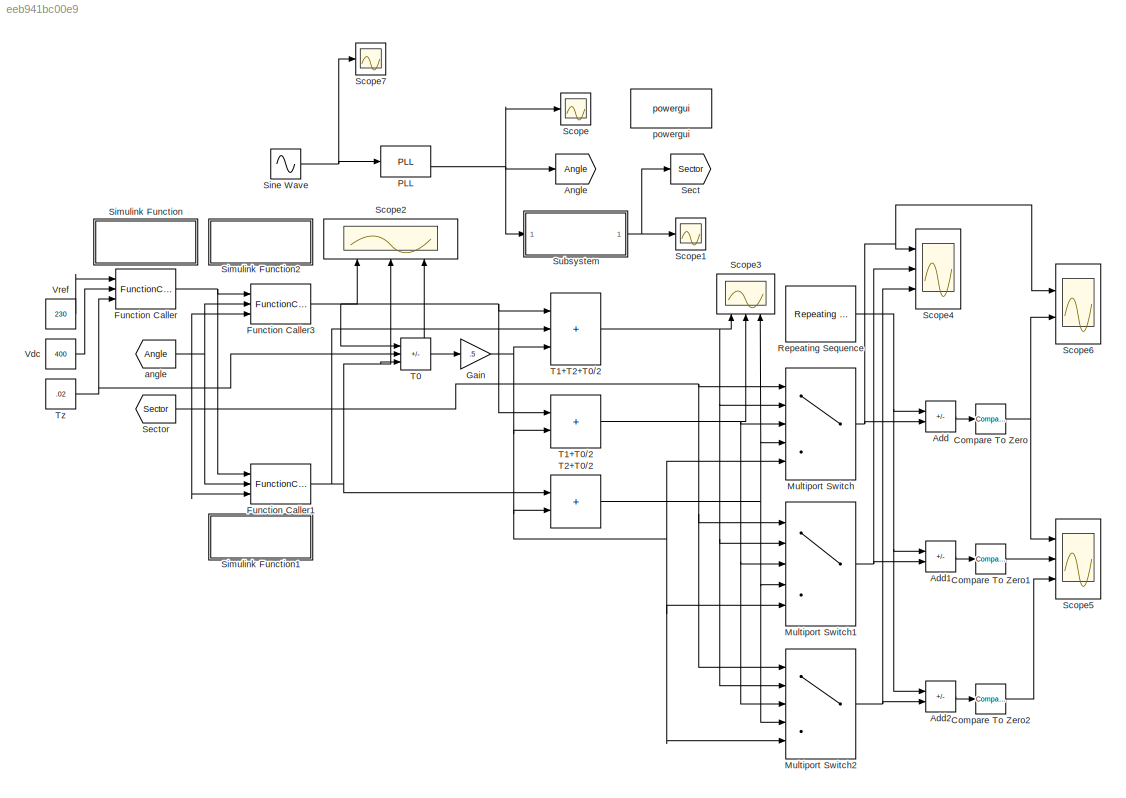
MODEL slx_eeb941bc00e9
KIND model
CONFIG AbsTol = auto
CONFIG EnableMultiTasking = off
CONFIG FixedStep = auto
CONFIG MaxStep = auto
CONFIG MinStep = auto
CONFIG RelTol = 1e-3
CONFIG SampleTimeConstraint = Unconstrained
CONFIG SolverName = VariableStepAuto
CONFIG StartTime = 0.0
CONFIG StopTime = 1
BLOCK [Sum] Add
  IconShape = rectangular
  Inputs = +-
  Ports = [2, 1]
BLOCK [Sum] Add1
  IconShape = rectangular
  Inputs = +-
  Ports = [2, 1]
BLOCK [Sum] Add2
  IconShape = rectangular
  Inputs = +-
  Ports = [2, 1]
BLOCK [Goto] Angle
  GotoTag = Angle
BLOCK [Reference] Compare To Zero  REF=simulink/Logic and Bit
Operations/Compare
To Zero
  Ports = [1, 1]
  SourceBlock = simulink/Logic and Bit\nOperations/Compare\nTo Zero
  SourceProductBaseCode = SL
  SourceType = Compare To Zero
BLOCK [Reference] Compare To Zero1  REF=simulink/Logic and Bit
Operations/Compare
To Zero
  Ports = [1, 1]
  SourceBlock = simulink/Logic and Bit\nOperations/Compare\nTo Zero
  SourceProductBaseCode = SL
  SourceType = Compare To Zero
BLOCK [Reference] Compare To Zero2  REF=simulink/Logic and Bit
Operations/Compare
To Zero
  Ports = [1, 1]
  SourceBlock = simulink/Logic and Bit\nOperations/Compare\nTo Zero
  SourceProductBaseCode = SL
  SourceType = Compare To Zero
BLOCK [FunctionCaller] Function Caller
  FunctionPrototype = y = f1(u1,u2,u3)
  InputArgumentSpecifications = <Enter example>
  OutputArgumentSpecifications = <Enter example>
  Ports = [3, 1]
BLOCK [FunctionCaller] Function Caller1
  FunctionPrototype = y = f2(u1,u2,u3)
  InputArgumentSpecifications = <Enter example>
  OutputArgumentSpecifications = <Enter example>
  Ports = [3, 1]
BLOCK [FunctionCaller] Function Caller3
  FunctionPrototype = y = f3(u1,u2,u3)
  InputArgumentSpecifications = <Enter example>
  OutputArgumentSpecifications = <Enter example>
  Ports = [3, 1]
BLOCK [Gain] Gain
  Gain = .5
BLOCK [MultiPortSwitch] Multiport Switch
  DataPortIndices = {[1,6],2,5,[3,4]}
  DataPortOrder = Specify indices
  InputSameDT = off
  Inputs = 4
  Ports = [5, 1]
  SaturateOnIntegerOverflow = off
BLOCK [MultiPortSwitch] Multiport Switch1
  DataPortIndices = {[2,3],4,1,[5,6]}
  DataPortOrder = Specify indices
  InputSameDT = off
  Inputs = 4
  Ports = [5, 1]
  SaturateOnIntegerOverflow = off
BLOCK [MultiPortSwitch] Multiport Switch2
  DataPortIndices = {[4,5],6,3,[1,2]}
  DataPortOrder = Specify indices
  InputSameDT = off
  Inputs = 4
  Ports = [5, 1]
  SaturateOnIntegerOverflow = off
BLOCK [Reference] PLL  REF=powerlib_meascontrol/PLL/PLL
  Ports = [1, 2]
  SourceBlock = powerlib_meascontrol/PLL/PLL
  SourceProductBaseCode = PS
  SourceType = PLL
BLOCK [Reference] Repeating Sequence  REF=simulink/Sources/Repeating
Sequence
  Ports = [0, 1]
  SourceBlock = simulink/Sources/Repeating\nSequence
  SourceProductBaseCode = SL
  SourceType = Repeating table
BLOCK [Scope] Scope
  Floating = off
  NumInputPorts = 1
  Ports = [1]
  ScopeSpecificationString = Simulink.scopes.TimeScopeBlockCfg('CurrentConfiguration', extmgr.ConfigurationSet(extmgr.Configuration('Core','General UI',true),extmgr.Configuration('Core','Source UI',true),extmgr.Configuration('Sources','WiredSimulink',true),extmgr.Configuration('Visuals','Time Domain',true,'SerializedDisplays',{struct('MinYLimReal','-0.67437','MaxYLimReal','6.38785','YLabelReal','','MinYLimMag','0.00000','MaxY...<+1373ch>
BLOCK [Scope] Scope1
  Floating = off
  NumInputPorts = 1
  Ports = [1]
  ScopeSpecificationString = Simulink.scopes.TimeScopeBlockCfg('CurrentConfiguration', extmgr.ConfigurationSet(extmgr.Configuration('Core','General UI',true),extmgr.Configuration('Core','Source UI',true),extmgr.Configuration('Sources','WiredSimulink',true,'DataLoggingVariableName','ScopeData1'),extmgr.Configuration('Visuals','Time Domain',true,'SerializedDisplays',{struct('MinYLimReal','0.375','MaxYLimReal','6.625','YLabelRea...<+1390ch>
BLOCK [Scope] Scope2
  Floating = off
  NameLocation = right
  NumInputPorts = 3
  Ports = [3]
  ScopeSpecificationString = Simulink.scopes.TimeScopeBlockCfg('CurrentConfiguration', extmgr.ConfigurationSet(extmgr.Configuration('Core','General UI',true),extmgr.Configuration('Core','Source UI',true),extmgr.Configuration('Sources','WiredSimulink',true,'DataLoggingVariableName','ScopeData2'),extmgr.Configuration('Visuals','Time Domain',true,'SerializedDisplays',{struct('MinYLimReal','-0.00216','MaxYLimReal','0.01745','YLab...<+2730ch>
BLOCK [Scope] Scope3
  Floating = off
  NameLocation = right
  NumInputPorts = 3
  Ports = [3]
  ScopeSpecificationString = Simulink.scopes.TimeScopeBlockCfg('CurrentConfiguration', extmgr.ConfigurationSet(extmgr.Configuration('Core','General UI',true),extmgr.Configuration('Core','Source UI',true),extmgr.Configuration('Sources','WiredSimulink',true,'DataLoggingVariableName','ScopeData1'),extmgr.Configuration('Visuals','Time Domain',true,'SerializedDisplays',{struct('MinYLimReal','0.01851','MaxYLimReal','0.01997','YLabe...<+2719ch>
BLOCK [Scope] Scope4
  Floating = off
  NumInputPorts = 3
  Ports = [3]
  ScopeSpecificationString = Simulink.scopes.TimeScopeBlockCfg('CurrentConfiguration', extmgr.ConfigurationSet(extmgr.Configuration('Core','General UI',true),extmgr.Configuration('Core','Source UI',true),extmgr.Configuration('Sources','WiredSimulink',true,'DataLoggingVariableName','ScopeData1'),extmgr.Configuration('Visuals','Time Domain',true,'SerializedDisplays',{struct('MinYLimReal','-0.00018','MaxYLimReal','0.02245','YLab...<+2746ch>
BLOCK [Scope] Scope5
  Floating = off
  NumInputPorts = 3
  Ports = [3]
  ScopeSpecificationString = Simulink.scopes.TimeScopeBlockCfg('CurrentConfiguration', extmgr.ConfigurationSet(extmgr.Configuration('Core','General UI',true),extmgr.Configuration('Core','Source UI',true),extmgr.Configuration('Sources','WiredSimulink',true,'DataLoggingVariableName','ScopeData2'),extmgr.Configuration('Visuals','Time Domain',true,'SerializedDisplays',{struct('MinYLimReal','-0.00219','MaxYLimReal','1.125','YLabel...<+2732ch>
BLOCK [Scope] Scope6
  Floating = off
  NumInputPorts = 2
  Ports = [2]
  ScopeSpecificationString = Simulink.scopes.TimeScopeBlockCfg('CurrentConfiguration', extmgr.ConfigurationSet(extmgr.Configuration('Core','General UI',true),extmgr.Configuration('Core','Source UI',true),extmgr.Configuration('Sources','WiredSimulink',true,'DataLoggingVariableName','ScopeData3'),extmgr.Configuration('Visuals','Time Domain',true,'SerializedDisplays',{struct('MinYLimReal','-0.00062','MaxYLimReal','0.02044','YLab...<+2023ch>
BLOCK [Scope] Scope7
  Floating = off
  NumInputPorts = 1
  Ports = [1]
  ScopeSpecificationString = Simulink.scopes.TimeScopeBlockCfg('CurrentConfiguration', extmgr.ConfigurationSet(extmgr.Configuration('Core','General UI',true),extmgr.Configuration('Core','Source UI',true),extmgr.Configuration('Sources','WiredSimulink',true,'DataLoggingVariableName','ScopeData4'),extmgr.Configuration('Visuals','Time Domain',true,'SerializedDisplays',{struct('MinYLimReal','-1.25','MaxYLimReal','1.25','YLabelReal...<+1399ch>
BLOCK [Goto] Sect
  GotoTag = Sector
BLOCK [From] Sector
  GotoTag = Sector
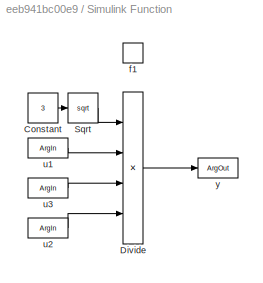
BLOCK [SubSystem] Simulink Function
  Ports = [0, 0, 0, 1]
  RequestExecContextInheritance = off
  TreatAsAtomicUnit = on
BLOCK [Constant] Simulink Function/Constant
  Value = 3
BLOCK [Product] Simulink Function/Divide
  Inputs = ***/
  Ports = [4, 1]
BLOCK [Sqrt] Simulink Function/Sqrt
BLOCK [TriggerPort] Simulink Function/f1
  FunctionName = f1
  FunctionVisibility = scoped
  IsSimulinkFunction = on
  Ports = []
  StatesWhenEnabling = held
  TriggerType = function-call
  VariantControl = (inherit)
BLOCK [ArgIn] Simulink Function/u1
  ArgumentName = u1
  DisableCoverage = on
BLOCK [ArgIn] Simulink Function/u2
  ArgumentName = u2
  DisableCoverage = on
  Port = 2
BLOCK [ArgIn] Simulink Function/u3
  ArgumentName = u3
  DisableCoverage = on
  Port = 3
BLOCK [ArgOut] Simulink Function/y
  ArgumentName = y
  DisableCoverage = on
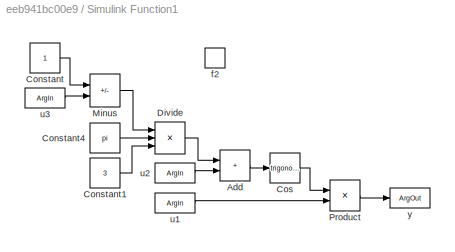
BLOCK [SubSystem] Simulink Function1
  Ports = [0, 0, 0, 1]
  RequestExecContextInheritance = off
  TreatAsAtomicUnit = on
BLOCK [Sum] Simulink Function1/Add
  IconShape = rectangular
  Ports = [2, 1]
BLOCK [Constant] Simulink Function1/Constant
BLOCK [Constant] Simulink Function1/Constant1
  Value = 3
BLOCK [Constant] Simulink Function1/Constant4
  Value = pi
BLOCK [Trigonometry] Simulink Function1/Cos
  NumberOfIterations = 100
  Ports = [1, 1]
BLOCK [Product] Simulink Function1/Divide
  Inputs = **/
  Ports = [3, 1]
BLOCK [Sum] Simulink Function1/Minus
  IconShape = rectangular
  Inputs = +-
  Ports = [2, 1]
BLOCK [Product] Simulink Function1/Product
  Ports = [2, 1]
BLOCK [TriggerPort] Simulink Function1/f2
  FunctionName = f2
  FunctionVisibility = scoped
  IsSimulinkFunction = on
  Ports = []
  StatesWhenEnabling = held
  TriggerType = function-call
  VariantControl = (inherit)
BLOCK [ArgIn] Simulink Function1/u1
  ArgumentName = u1
  DisableCoverage = on
BLOCK [ArgIn] Simulink Function1/u2
  ArgumentName = u2
  DisableCoverage = on
  Port = 2
BLOCK [ArgIn] Simulink Function1/u3
  ArgumentName = u3
  DisableCoverage = on
  Port = 3
BLOCK [ArgOut] Simulink Function1/y
  ArgumentName = y
  DisableCoverage = on
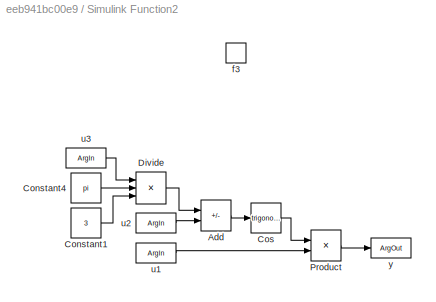
BLOCK [SubSystem] Simulink Function2
  Ports = [0, 0, 0, 1]
  RequestExecContextInheritance = off
  TreatAsAtomicUnit = on
BLOCK [Sum] Simulink Function2/Add
  IconShape = rectangular
  Inputs = +-
  Ports = [2, 1]
BLOCK [Constant] Simulink Function2/Constant1
  Value = 3
BLOCK [Constant] Simulink Function2/Constant4
  Value = pi
BLOCK [Trigonometry] Simulink Function2/Cos
  NumberOfIterations = 100
  Ports = [1, 1]
BLOCK [Product] Simulink Function2/Divide
  Inputs = **/
  Ports = [3, 1]
BLOCK [Product] Simulink Function2/Product
  Ports = [2, 1]
BLOCK [TriggerPort] Simulink Function2/f3
  FunctionName = f3
  FunctionVisibility = scoped
  IsSimulinkFunction = on
  Ports = []
  StatesWhenEnabling = held
  TriggerType = function-call
  VariantControl = (inherit)
BLOCK [ArgIn] Simulink Function2/u1
  ArgumentName = u1
  DisableCoverage = on
BLOCK [ArgIn] Simulink Function2/u2
  ArgumentName = u2
  DisableCoverage = on
  Port = 2
BLOCK [ArgIn] Simulink Function2/u3
  ArgumentName = u3
  DisableCoverage = on
  Port = 3
BLOCK [ArgOut] Simulink Function2/y
  ArgumentName = y
  DisableCoverage = on
BLOCK [Sin] Sine Wave
  Frequency = 2*pi*50
  Ports = [0, 1]
  SampleTime = 0
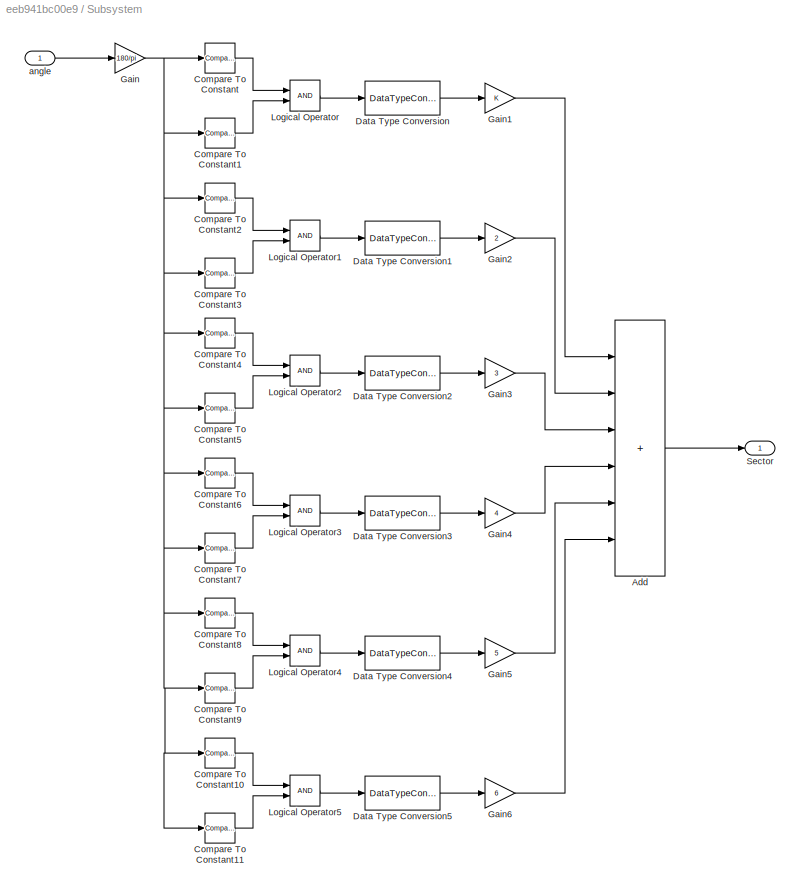
BLOCK [SubSystem] Subsystem
  Ports = [1, 1]
  RequestExecContextInheritance = off
BLOCK [Sum] Subsystem/Add
  IconShape = rectangular
  Inputs = ++++++
  Ports = [6, 1]
BLOCK [Reference] Subsystem/Compare To Constant  REF=simulink/Logic and Bit
Operations/Compare
To Constant
  Ports = [1, 1]
  SourceBlock = simulink/Logic and Bit\nOperations/Compare\nTo Constant
  SourceProductBaseCode = SL
  SourceType = Compare To Constant
BLOCK [Reference] Subsystem/Compare To Constant1  REF=simulink/Logic and Bit
Operations/Compare
To Constant
  Ports = [1, 1]
  SourceBlock = simulink/Logic and Bit\nOperations/Compare\nTo Constant
  SourceProductBaseCode = SL
  SourceType = Compare To Constant
BLOCK [Reference] Subsystem/Compare To Constant10  REF=simulink/Logic and Bit
Operations/Compare
To Constant
  Ports = [1, 1]
  SourceBlock = simulink/Logic and Bit\nOperations/Compare\nTo Constant
  SourceProductBaseCode = SL
  SourceType = Compare To Constant
BLOCK [Reference] Subsystem/Compare To Constant11  REF=simulink/Logic and Bit
Operations/Compare
To Constant
  Ports = [1, 1]
  SourceBlock = simulink/Logic and Bit\nOperations/Compare\nTo Constant
  SourceProductBaseCode = SL
  SourceType = Compare To Constant
BLOCK [Reference] Subsystem/Compare To Constant2  REF=simulink/Logic and Bit
Operations/Compare
To Constant
  Ports = [1, 1]
  SourceBlock = simulink/Logic and Bit\nOperations/Compare\nTo Constant
  SourceProductBaseCode = SL
  SourceType = Compare To Constant
BLOCK [Reference] Subsystem/Compare To Constant3  REF=simulink/Logic and Bit
Operations/Compare
To Constant
  Ports = [1, 1]
  SourceBlock = simulink/Logic and Bit\nOperations/Compare\nTo Constant
  SourceProductBaseCode = SL
  SourceType = Compare To Constant
BLOCK [Reference] Subsystem/Compare To Constant4  REF=simulink/Logic and Bit
Operations/Compare
To Constant
  Ports = [1, 1]
  SourceBlock = simulink/Logic and Bit\nOperations/Compare\nTo Constant
  SourceProductBaseCode = SL
  SourceType = Compare To Constant
BLOCK [Reference] Subsystem/Compare To Constant5  REF=simulink/Logic and Bit
Operations/Compare
To Constant
  Ports = [1, 1]
  SourceBlock = simulink/Logic and Bit\nOperations/Compare\nTo Constant
  SourceProductBaseCode = SL
  SourceType = Compare To Constant
BLOCK [Reference] Subsystem/Compare To Constant6  REF=simulink/Logic and Bit
Operations/Compare
To Constant
  Ports = [1, 1]
  SourceBlock = simulink/Logic and Bit\nOperations/Compare\nTo Constant
  SourceProductBaseCode = SL
  SourceType = Compare To Constant
BLOCK [Reference] Subsystem/Compare To Constant7  REF=simulink/Logic and Bit
Operations/Compare
To Constant
  Ports = [1, 1]
  SourceBlock = simulink/Logic and Bit\nOperations/Compare\nTo Constant
  SourceProductBaseCode = SL
  SourceType = Compare To Constant
BLOCK [Reference] Subsystem/Compare To Constant8  REF=simulink/Logic and Bit
Operations/Compare
To Constant
  Ports = [1, 1]
  SourceBlock = simulink/Logic and Bit\nOperations/Compare\nTo Constant
  SourceProductBaseCode = SL
  SourceType = Compare To Constant
BLOCK [Reference] Subsystem/Compare To Constant9  REF=simulink/Logic and Bit
Operations/Compare
To Constant
  Ports = [1, 1]
  SourceBlock = simulink/Logic and Bit\nOperations/Compare\nTo Constant
  SourceProductBaseCode = SL
  SourceType = Compare To Constant
BLOCK [DataTypeConversion] Subsystem/Data Type Conversion
  RndMeth = Floor
  SaturateOnIntegerOverflow = off
BLOCK [DataTypeConversion] Subsystem/Data Type Conversion1
  RndMeth = Floor
  SaturateOnIntegerOverflow = off
BLOCK [DataTypeConversion] Subsystem/Data Type Conversion2
  RndMeth = Floor
  SaturateOnIntegerOverflow = off
BLOCK [DataTypeConversion] Subsystem/Data Type Conversion3
  RndMeth = Floor
  SaturateOnIntegerOverflow = off
BLOCK [DataTypeConversion] Subsystem/Data Type Conversion4
  RndMeth = Floor
  SaturateOnIntegerOverflow = off
BLOCK [DataTypeConversion] Subsystem/Data Type Conversion5
  RndMeth = Floor
  SaturateOnIntegerOverflow = off
BLOCK [Gain] Subsystem/Gain
  Gain = 180/pi
BLOCK [Gain] Subsystem/Gain1
BLOCK [Gain] Subsystem/Gain2
  Gain = 2
BLOCK [Gain] Subsystem/Gain3
  Gain = 3
BLOCK [Gain] Subsystem/Gain4
  Gain = 4
BLOCK [Gain] Subsystem/Gain5
  Gain = 5
BLOCK [Gain] Subsystem/Gain6
  Gain = 6
BLOCK [Logic] Subsystem/Logical Operator
  AllPortsSameDT = off
  OutDataTypeStr = boolean
  Ports = [2, 1]
BLOCK [Logic] Subsystem/Logical Operator1
  AllPortsSameDT = off
  OutDataTypeStr = boolean
  Ports = [2, 1]
BLOCK [Logic] Subsystem/Logical Operator2
  AllPortsSameDT = off
  OutDataTypeStr = boolean
  Ports = [2, 1]
BLOCK [Logic] Subsystem/Logical Operator3
  AllPortsSameDT = off
  OutDataTypeStr = boolean
  Ports = [2, 1]
BLOCK [Logic] Subsystem/Logical Operator4
  AllPortsSameDT = off
  OutDataTypeStr = boolean
  Ports = [2, 1]
BLOCK [Logic] Subsystem/Logical Operator5
  AllPortsSameDT = off
  OutDataTypeStr = boolean
  Ports = [2, 1]
BLOCK [Outport] Subsystem/Sector
BLOCK [Inport] Subsystem/angle
BLOCK [Sum] T0
  IconShape = rectangular
  Inputs = -+-
  Ports = [3, 1]
BLOCK [Sum] T1+T0//2
  IconShape = rectangular
  Ports = [2, 1]
BLOCK [Sum] T1+T2+T0//2
  IconShape = rectangular
  Inputs = +++
  Ports = [3, 1]
BLOCK [Sum] T2+T0//2
  IconShape = rectangular
  Ports = [2, 1]
BLOCK [Constant] Tz
  Value = .02
BLOCK [Constant] Vdc
  Value = 400
BLOCK [Constant] Vref
  Value = 230
BLOCK [From] angle
  GotoTag = Angle
BLOCK [Reference] powergui  REF=powerlib/powergui
  Ports = []
  Priority = 1
  SourceBlock = powerlib/powergui
  SourceProductBaseCode = PS
  SourceType = PSB option menu block
LINE Add1:1 -> Compare To Zero1:1
LINE Add2:1 -> Compare To Zero2:1
LINE Add:1 -> Compare To Zero:1
LINE Compare To Zero1:1 -> Scope5:2
LINE Compare To Zero2:1 -> Scope5:3
NET Compare To Zero:1 -> Scope5:1, Scope6:2
NET Function Caller1:1 -> Scope2:2, T0:3, T1+T2+T0//2:2, T2+T0//2:1
NET Function Caller3:1 -> Scope2:1, T0:1, T1+T0//2:1, T1+T2+T0//2:1
NET Function Caller:1 -> Function Caller1:1, Function Caller3:1
NET Gain:1 -> Multiport Switch1:5, Multiport Switch2:5, Multiport Switch:5, T1+T0//2:2, T1+T2+T0//2:3, T2+T0//2:2
NET Multiport Switch1:1 -> Add1:2, Scope4:2
NET Multiport Switch2:1 -> Add2:2, Scope4:3
NET Multiport Switch:1 -> Add:2, Scope4:1, Scope6:1
NET PLL:2 -> Angle:1, Scope:1, Subsystem:1
NET Repeating Sequence:1 -> Add1:1, Add2:1, Add:1
NET Sector:1 -> Function Caller1:3, Function Caller3:3, Multiport Switch1:1, Multiport Switch2:1, Multiport Switch:1
LINE Simulink Function/Constant:1 -> Simulink Function/Sqrt:1
LINE Simulink Function/Divide:1 -> Simulink Function/y:1
LINE Simulink Function/Sqrt:1 -> Simulink Function/Divide:1
LINE Simulink Function/u1:1 -> Simulink Function/Divide:2
LINE Simulink Function/u2:1 -> Simulink Function/Divide:4
LINE Simulink Function/u3:1 -> Simulink Function/Divide:3
LINE Simulink Function1/Add:1 -> Simulink Function1/Cos:1
LINE Simulink Function1/Constant1:1 -> Simulink Function1/Divide:3
LINE Simulink Function1/Constant4:1 -> Simulink Function1/Divide:2
LINE Simulink Function1/Constant:1 -> Simulink Function1/Minus:1
LINE Simulink Function1/Cos:1 -> Simulink Function1/Product:1
LINE Simulink Function1/Divide:1 -> Simulink Function1/Add:1
LINE Simulink Function1/Minus:1 -> Simulink Function1/Divide:1
LINE Simulink Function1/Product:1 -> Simulink Function1/y:1
LINE Simulink Function1/u1:1 -> Simulink Function1/Product:2
LINE Simulink Function1/u2:1 -> Simulink Function1/Add:2
LINE Simulink Function1/u3:1 -> Simulink Function1/Minus:2
LINE Simulink Function2/Add:1 -> Simulink Function2/Cos:1
LINE Simulink Function2/Constant1:1 -> Simulink Function2/Divide:3
LINE Simulink Function2/Constant4:1 -> Simulink Function2/Divide:2
LINE Simulink Function2/Cos:1 -> Simulink Function2/Product:1
LINE Simulink Function2/Divide:1 -> Simulink Function2/Add:1
LINE Simulink Function2/Product:1 -> Simulink Function2/y:1
LINE Simulink Function2/u1:1 -> Simulink Function2/Product:2
LINE Simulink Function2/u2:1 -> Simulink Function2/Add:2
LINE Simulink Function2/u3:1 -> Simulink Function2/Divide:1
NET Sine Wave:1 -> PLL:1, Scope7:1
LINE Subsystem/Add:1 -> Subsystem/Sector:1
LINE Subsystem/Compare To Constant10:1 -> Subsystem/Logical Operator5:1
LINE Subsystem/Compare To Constant11:1 -> Subsystem/Logical Operator5:2
LINE Subsystem/Compare To Constant1:1 -> Subsystem/Logical Operator:2
LINE Subsystem/Compare To Constant2:1 -> Subsystem/Logical Operator1:1
LINE Subsystem/Compare To Constant3:1 -> Subsystem/Logical Operator1:2
LINE Subsystem/Compare To Constant4:1 -> Subsystem/Logical Operator2:1
LINE Subsystem/Compare To Constant5:1 -> Subsystem/Logical Operator2:2
LINE Subsystem/Compare To Constant6:1 -> Subsystem/Logical Operator3:1
LINE Subsystem/Compare To Constant7:1 -> Subsystem/Logical Operator3:2
LINE Subsystem/Compare To Constant8:1 -> Subsystem/Logical Operator4:1
LINE Subsystem/Compare To Constant9:1 -> Subsystem/Logical Operator4:2
LINE Subsystem/Compare To Constant:1 -> Subsystem/Logical Operator:1
LINE Subsystem/Data Type Conversion1:1 -> Subsystem/Gain2:1
LINE Subsystem/Data Type Conversion2:1 -> Subsystem/Gain3:1
LINE Subsystem/Data Type Conversion3:1 -> Subsystem/Gain4:1
LINE Subsystem/Data Type Conversion4:1 -> Subsystem/Gain5:1
LINE Subsystem/Data Type Conversion5:1 -> Subsystem/Gain6:1
LINE Subsystem/Data Type Conversion:1 -> Subsystem/Gain1:1
LINE Subsystem/Gain1:1 -> Subsystem/Add:1
LINE Subsystem/Gain2:1 -> Subsystem/Add:2
LINE Subsystem/Gain3:1 -> Subsystem/Add:3
LINE Subsystem/Gain4:1 -> Subsystem/Add:4
LINE Subsystem/Gain5:1 -> Subsystem/Add:5
LINE Subsystem/Gain6:1 -> Subsystem/Add:6
NET Subsystem/Gain:1 -> Subsystem/Compare To Constant10:1, Subsystem/Compare To Constant11:1, Subsystem/Compare To Constant1:1, Subsystem/Compare To Constant2:1, Subsystem/Compare To Constant3:1, Subsystem/Compare To Constant4:1, Subsystem/Compare To Constant5:1, Subsystem/Compare To Constant6:1, Subsystem/Compare To Constant7:1, Subsystem/Compare To Constant8:1, Subsystem/Compare To Constant9:1, Subsystem/Compare To Constant:1
LINE Subsystem/Logical Operator1:1 -> Subsystem/Data Type Conversion1:1
LINE Subsystem/Logical Operator2:1 -> Subsystem/Data Type Conversion2:1
LINE Subsystem/Logical Operator3:1 -> Subsystem/Data Type Conversion3:1
LINE Subsystem/Logical Operator4:1 -> Subsystem/Data Type Conversion4:1
LINE Subsystem/Logical Operator5:1 -> Subsystem/Data Type Conversion5:1
LINE Subsystem/Logical Operator:1 -> Subsystem/Data Type Conversion:1
LINE Subsystem/angle:1 -> Subsystem/Gain:1
NET Subsystem:1 -> Scope1:1, Sect:1
NET T0:1 -> Gain:1, Scope2:3
NET T1+T0//2:1 -> Multiport Switch1:3, Multiport Switch2:3, Multiport Switch:3, Scope3:2
NET T1+T2+T0//2:1 -> Multiport Switch1:2, Multiport Switch2:2, Multiport Switch:2, Scope3:1
NET T2+T0//2:1 -> Multiport Switch1:4, Multiport Switch2:4, Multiport Switch:4, Scope3:3
NET Tz:1 -> Function Caller:3, T0:2
LINE Vdc:1 -> Function Caller:2
LINE Vref:1 -> Function Caller:1
NET angle:1 -> Function Caller1:2, Function Caller3:2
note: NET lines group one-source signal fan-out (src -> all destinations, sorted); 1:1 wires keep LINE
